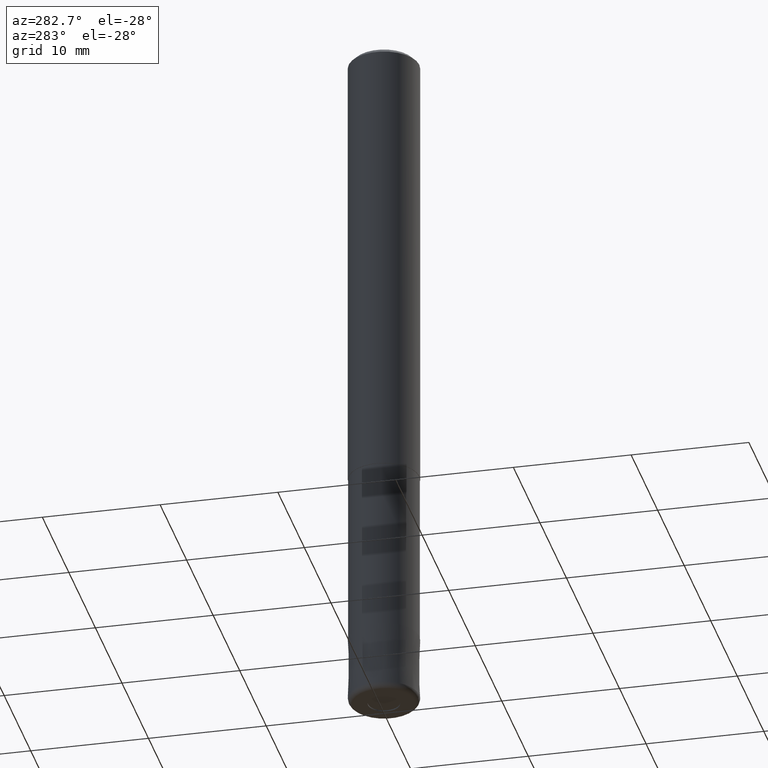
[diagram: clean part render]
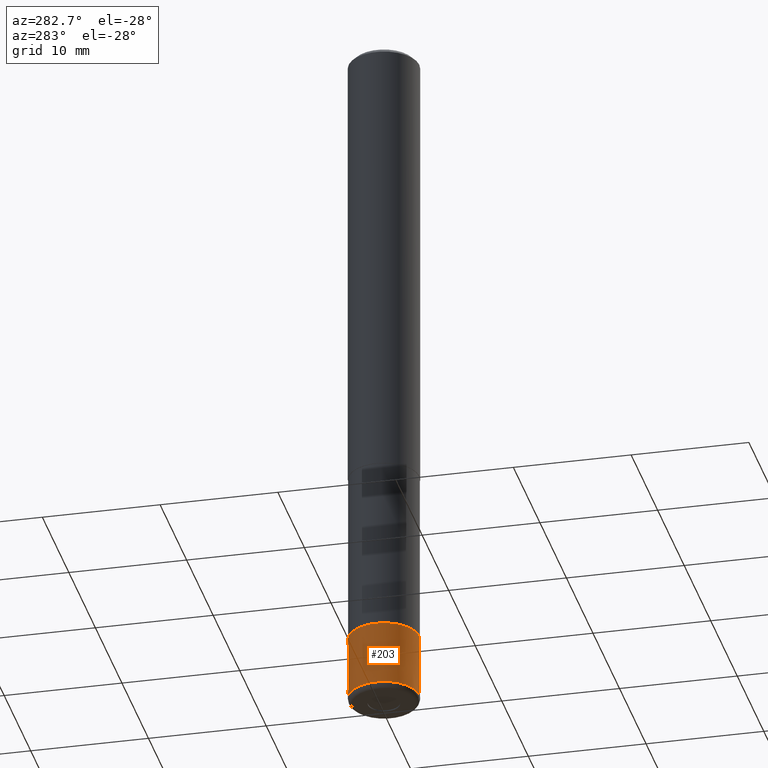
[diagram: same view with one face highlighted and labeled with its STEP entity id]
A machine part, auxiliary view. The second image highlights one B-rep face of the part: STEP entity #203.
In plain terms, the highlighted conical surface has half-angle 0.001 deg.
Its self-contained STEP definition (entity closure, byte-faithful):
#123=EDGE_CURVE('',#265,#283,#312,.T.);
#141=EDGE_CURVE('',#283,#281,#332,.T.);
#203=ADVANCED_FACE('',(#404),#405,.T.);
#221=EDGE_CURVE('',#257,#281,#426,.T.);
#257=VERTEX_POINT('',#465);
#265=VERTEX_POINT('',#473);
#267=EDGE_CURVE('',#257,#265,#475,.T.);
#281=VERTEX_POINT('',#492);
#283=VERTEX_POINT('',#494);
#312=CIRCLE('',#516,2.9999);
#332=LINE('',#540,#541);
#404=FACE_OUTER_BOUND('',#626,.T.);
#405=CONICAL_SURFACE('',#627,2.99995,1.8181818179853E-005);
#426=CIRCLE('',#656,3.0);
#465=CARTESIAN_POINT('',(3.67381906146713E-016,-3.0,-59.5));
#473=CARTESIAN_POINT('',(3.67369660083175E-016,-2.9999,-54.0));
#475=LINE('',#720,#721);
#492=CARTESIAN_POINT('',(0.0,3.0,-59.5));
#494=CARTESIAN_POINT('',(0.0,2.9999,-54.0));
#516=AXIS2_PLACEMENT_3D('',#755,#756,#757);
#540=CARTESIAN_POINT('',(-3.67375783114944E-016,2.99995,-56.75));
#541=VECTOR('',#776,1.0);
#626=EDGE_LOOP('',(#876,#877,#878,#879));
#627=AXIS2_PLACEMENT_3D('',#880,#881,#882);
#656=AXIS2_PLACEMENT_3D('',#915,#916,#917);
#720=CARTESIAN_POINT('',(3.67375783114944E-016,-2.99995,-56.75));
#721=VECTOR('',#973,1.0);
#755=CARTESIAN_POINT('',(0.0,0.0,-54.0));
#756=DIRECTION('',(0.0,0.0,-1.0));
#757=DIRECTION('',(0.0,1.0,0.0));
#776=DIRECTION('',(-2.22655700658645E-021,1.81818181788513E-005,-0.999999999834711));
#876=ORIENTED_EDGE('',*,*,#141,.T.);
#877=ORIENTED_EDGE('',*,*,#221,.F.);
#878=ORIENTED_EDGE('',*,*,#267,.T.);
#879=ORIENTED_EDGE('',*,*,#123,.T.);
#880=CARTESIAN_POINT('',(0.0,0.0,-56.75));
#881=DIRECTION('',(0.0,-0.0,-1.0));
#882=DIRECTION('',(0.0,1.0,0.0));
#915=CARTESIAN_POINT('',(0.0,0.0,-59.5));
#916=DIRECTION('',(0.0,0.0,-1.0));
#917=DIRECTION('',(0.0,1.0,0.0));
#973=DIRECTION('',(-2.22655700658645E-021,1.81818181788513E-005,0.999999999834711));